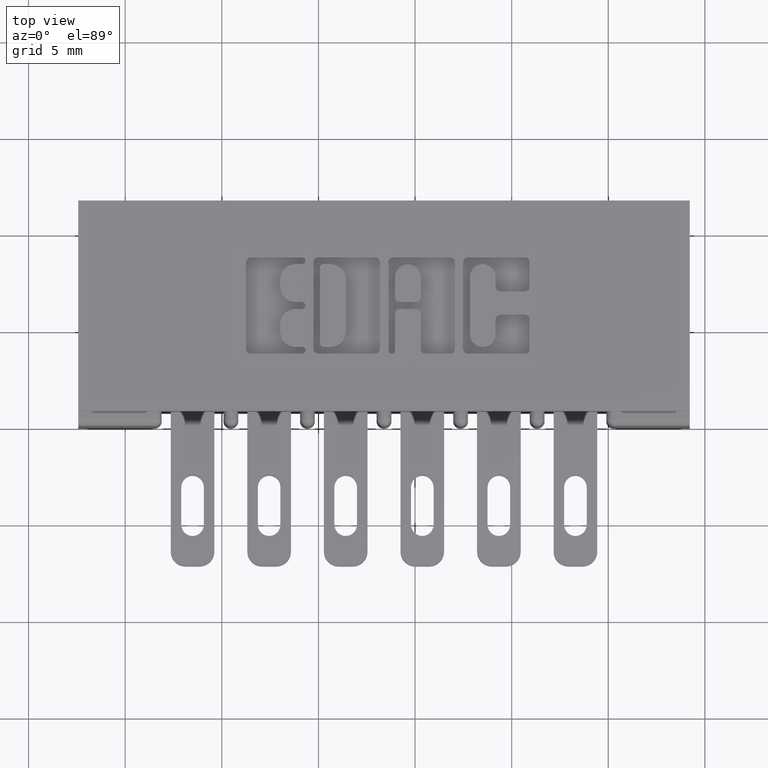
[diagram: clean part render]
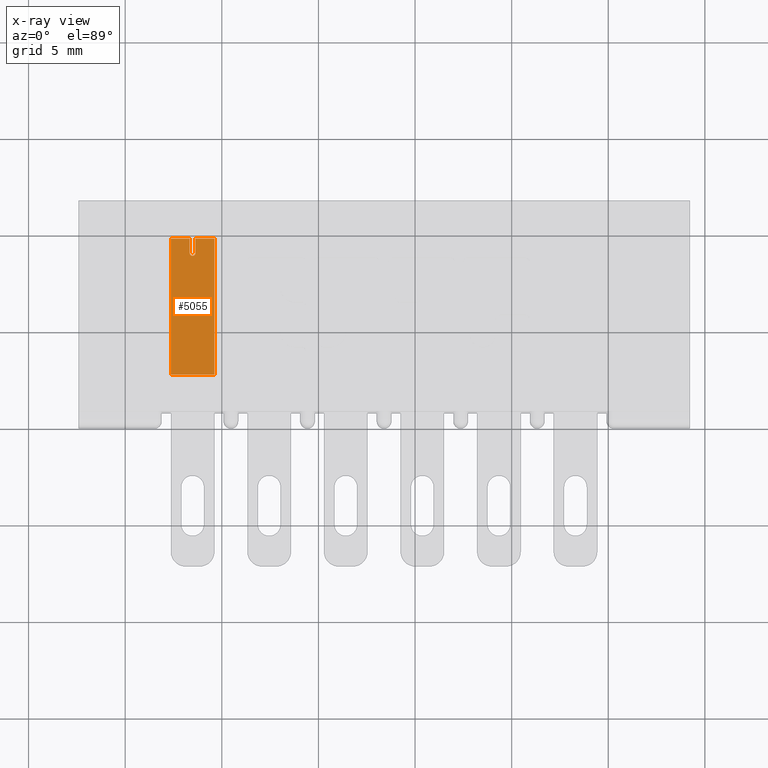
[diagram: x-ray — body ghosted, one internal face saturated and labeled with its STEP entity id]
A machine part, top view, then the same camera in x-ray: the body is ghosted and one INTERNAL B-rep face — a face not visible from any outside direction — is saturated and labeled: STEP entity #5055.
In plain terms, the highlighted planar face has unit normal (-0, -0, 1).
Its self-contained STEP definition (entity closure, byte-faithful):
#172 = ORIENTED_EDGE ( 'NONE', *, *, #10090, .T. ) ;
#324 = VERTEX_POINT ( 'NONE', #10564 ) ;
#733 = CARTESIAN_POINT ( 'NONE',  ( 0.04450000000000003300, 0.2770000000001395200, -0.03299999999988594000 ) ) ;
#1130 = ORIENTED_EDGE ( 'NONE', *, *, #6902, .T. ) ;
#1376 = CARTESIAN_POINT ( 'NONE',  ( -0.04450000000000003300, 0.2770000000001064400, -0.03299999999988594000 ) ) ;
#1453 = DIRECTION ( 'NONE',  ( -1.000000000000000000, -7.331476037897778500E-029, -3.119290563698954100E-046 ) ) ;
#1460 = LINE ( 'NONE', #5802, #6678 ) ;
#1462 = ORIENTED_EDGE ( 'NONE', *, *, #9141, .F. ) ;
#1512 = DIRECTION ( 'NONE',  ( 8.139659030232453400E-045, 1.232783390642718400E-016, -1.000000000000000000 ) ) ;
#1656 = VECTOR ( 'NONE', #5918, 39.37007874015748100 ) ;
#1732 = VECTOR ( 'NONE', #8747, 39.37007874015748100 ) ;
#1866 = ORIENTED_EDGE ( 'NONE', *, *, #8174, .F. ) ;
#1887 = CARTESIAN_POINT ( 'NONE',  ( -0.04450000000000003300, 1.348849946871729900E-014, -0.03299999999988594000 ) ) ;
#2123 = DIRECTION ( 'NONE',  ( 7.331476037897778500E-029, 1.000000000000000000, 1.219574997171547200E-015 ) ) ;
#2310 = CARTESIAN_POINT ( 'NONE',  ( 0.005999999999999881300, 0.2770000000001270900, -0.03299999999988594000 ) ) ;
#2700 = VERTEX_POINT ( 'NONE', #1887 ) ;
#2830 = AXIS2_PLACEMENT_3D ( 'NONE', #10600, #1512, #3310 ) ;
#3000 = CARTESIAN_POINT ( 'NONE',  ( 0.04450000000000003300, 0.2770000000001395200, -0.03299999999988594000 ) ) ;
#3030 = LINE ( 'NONE', #3000, #1732 ) ;
#3176 = PLANE ( 'NONE',  #7825 ) ;
#3310 = DIRECTION ( 'NONE',  ( -7.331476037897791900E-029, -1.000000000000000000, 0.0000000000000000000 ) ) ;
#3349 = VERTEX_POINT ( 'NONE', #4385 ) ;
#3880 = CARTESIAN_POINT ( 'NONE',  ( 0.04450000000000003300, 4.729511839031255400E-014, -0.03299999999988594000 ) ) ;
#3995 = ORIENTED_EDGE ( 'NONE', *, *, #8431, .F. ) ;
#4282 = VERTEX_POINT ( 'NONE', #6213 ) ;
#4348 = EDGE_CURVE ( 'NONE', #3349, #324, #6499, .T. ) ;
#4370 = VECTOR ( 'NONE', #1453, 39.37007874015748100 ) ;
#4385 = CARTESIAN_POINT ( 'NONE',  ( 0.005999999999999881300, 0.2480000000001272000, -0.03299999999988594000 ) ) ;
#4636 = LINE ( 'NONE', #9706, #4370 ) ;
#4775 = DIRECTION ( 'NONE',  ( -7.331476037897778500E-029, -1.000000000000000000, -1.232783390642718400E-016 ) ) ;
#5055 = ADVANCED_FACE ( 'NONE', ( #8061 ), #3176, .F. ) ;
#5146 = ORIENTED_EDGE ( 'NONE', *, *, #4348, .F. ) ;
#5166 = LINE ( 'NONE', #9875, #8668 ) ;
#5780 = CARTESIAN_POINT ( 'NONE',  ( -0.005999999999999881300, 0.2770000000001270900, -0.03299999999988594000 ) ) ;
#5802 = CARTESIAN_POINT ( 'NONE',  ( 0.005999999999999881300, 0.2420000000001271700, -0.03299999999988594000 ) ) ;
#5918 = DIRECTION ( 'NONE',  ( 7.331476037897778500E-029, 1.000000000000000000, 1.232783390642718100E-016 ) ) ;
#6213 = CARTESIAN_POINT ( 'NONE',  ( 0.04450000000000003300, 0.2770000000001395200, -0.03299999999988594000 ) ) ;
#6488 = LINE ( 'NONE', #10234, #1656 ) ;
#6499 = CIRCLE ( 'NONE', #2830, 0.005999999999999983600 ) ;
#6678 = VECTOR ( 'NONE', #2123, 39.37007874015748100 ) ;
#6821 = VECTOR ( 'NONE', #10300, 39.37007874015748100 ) ;
#6902 = EDGE_CURVE ( 'NONE', #2700, #7931, #6488, .T. ) ;
#6974 = EDGE_LOOP ( 'NONE', ( #5146, #172, #1866, #3995, #9320, #1130, #9978, #1462 ) ) ;
#7825 = AXIS2_PLACEMENT_3D ( 'NONE', #733, #8129, #4775 ) ;
#7931 = VERTEX_POINT ( 'NONE', #1376 ) ;
#8061 = FACE_OUTER_BOUND ( 'NONE', #6974, .T. ) ;
#8129 = DIRECTION ( 'NONE',  ( -8.139659030232453400E-045, -1.232783390642718400E-016, 1.000000000000000000 ) ) ;
#8174 = EDGE_CURVE ( 'NONE', #4282, #9229, #8800, .T. ) ;
#8413 = LINE ( 'NONE', #8661, #6821 ) ;
#8431 = EDGE_CURVE ( 'NONE', #10384, #4282, #3030, .T. ) ;
#8541 = VECTOR ( 'NONE', #9097, 39.37007874015748100 ) ;
#8661 = CARTESIAN_POINT ( 'NONE',  ( -0.005999999999999881300, 0.2420000000001271700, -0.03299999999988594000 ) ) ;
#8668 = VECTOR ( 'NONE', #9773, 39.37007874015748100 ) ;
#8747 = DIRECTION ( 'NONE',  ( 7.331476037897778500E-029, 1.000000000000000000, 1.232783390642718100E-016 ) ) ;
#8800 = LINE ( 'NONE', #9156, #8541 ) ;
#9097 = DIRECTION ( 'NONE',  ( -1.000000000000000000, -7.331476037897778500E-029, -3.119290563698954100E-046 ) ) ;
#9141 = EDGE_CURVE ( 'NONE', #324, #9482, #8413, .T. ) ;
#9156 = CARTESIAN_POINT ( 'NONE',  ( 0.04450000000000003300, 0.2770000000001395200, -0.03299999999988594000 ) ) ;
#9229 = VERTEX_POINT ( 'NONE', #2310 ) ;
#9320 = ORIENTED_EDGE ( 'NONE', *, *, #9479, .T. ) ;
#9479 = EDGE_CURVE ( 'NONE', #10384, #2700, #5166, .T. ) ;
#9482 = VERTEX_POINT ( 'NONE', #5780 ) ;
#9706 = CARTESIAN_POINT ( 'NONE',  ( 0.04450000000000003300, 0.2770000000001395200, -0.03299999999988594000 ) ) ;
#9773 = DIRECTION ( 'NONE',  ( -1.000000000000000000, -7.331476037897778500E-029, -3.119290563698954100E-046 ) ) ;
#9875 = CARTESIAN_POINT ( 'NONE',  ( 0.04450000000000003300, 4.729511839031255400E-014, -0.03299999999988594000 ) ) ;
#9978 = ORIENTED_EDGE ( 'NONE', *, *, #10523, .F. ) ;
#10090 = EDGE_CURVE ( 'NONE', #3349, #9229, #1460, .T. ) ;
#10234 = CARTESIAN_POINT ( 'NONE',  ( -0.04450000000000003300, 0.2770000000001064400, -0.03299999999988594000 ) ) ;
#10300 = DIRECTION ( 'NONE',  ( 7.331476037897778500E-029, 1.000000000000000000, 1.219574997171547200E-015 ) ) ;
#10384 = VERTEX_POINT ( 'NONE', #3880 ) ;
#10523 = EDGE_CURVE ( 'NONE', #9482, #7931, #4636, .T. ) ;
#10564 = CARTESIAN_POINT ( 'NONE',  ( -0.005999999999999881300, 0.2480000000001272000, -0.03299999999988594000 ) ) ;
#10600 = CARTESIAN_POINT ( 'NONE',  ( 0.0000000000000000000, 0.2480000000001272000, -0.03299999999988594000 ) ) ;